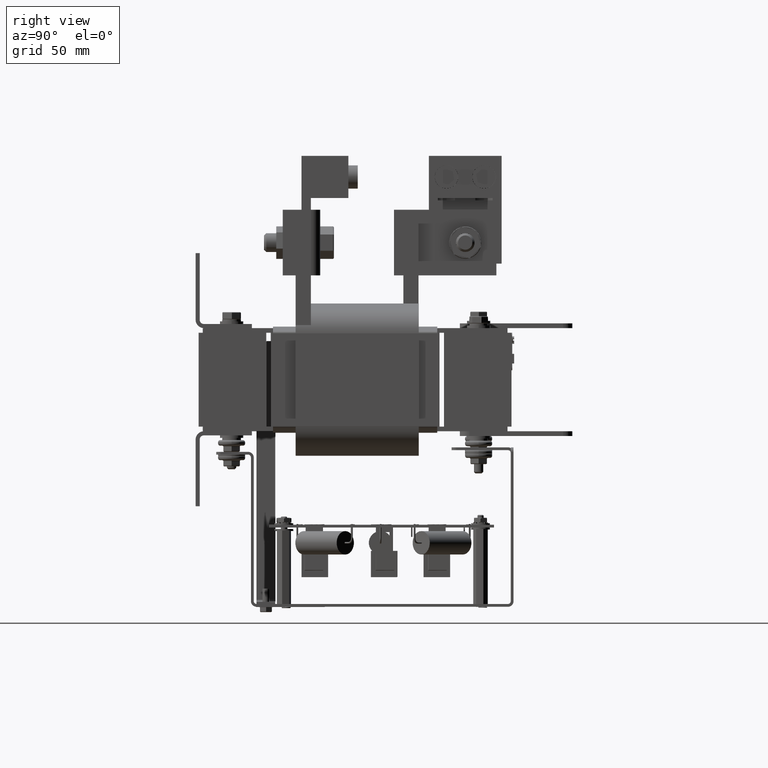
[diagram: clean part render]
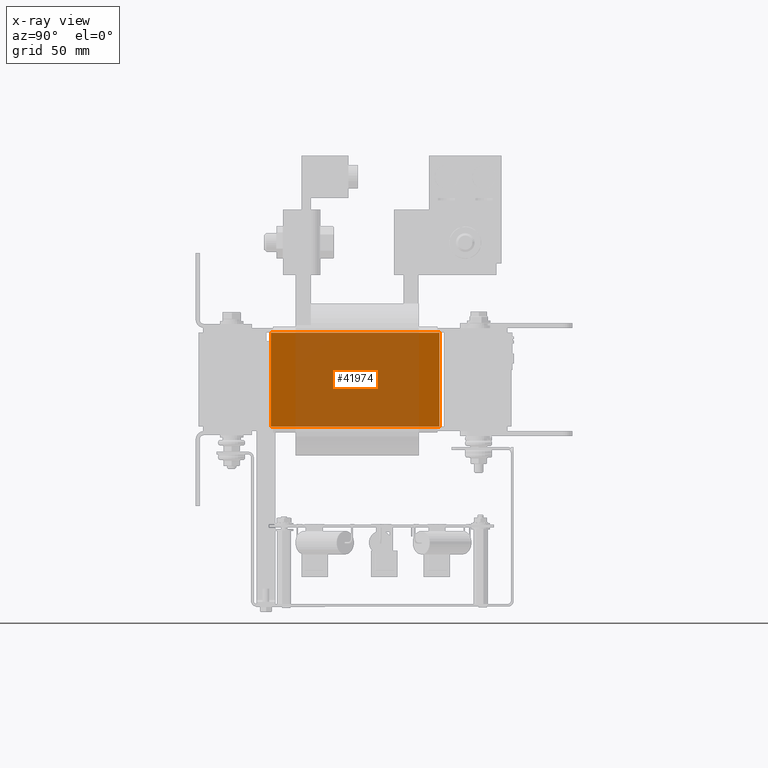
[diagram: x-ray — body ghosted, one internal face saturated and labeled with its STEP entity id]
A machine part, right view, then the same camera in x-ray: the body is ghosted and one INTERNAL B-rep face — a face not visible from any outside direction — is saturated and labeled: STEP entity #41974.
In plain terms, the highlighted planar face has unit normal (-1, 0, -0).
Its self-contained STEP definition (entity closure, byte-faithful):
#2367=PLANE('',#45105);
#3895=FACE_OUTER_BOUND('',#6269,.T.);
#6269=EDGE_LOOP('',(#31049,#31050,#31051,#31052));
#9283=LINE('',#66045,#13402);
#9284=LINE('',#66047,#13403);
#9285=LINE('',#66049,#13404);
#9286=LINE('',#66050,#13405);
#13402=VECTOR('',#50482,0.393700787401575);
#13403=VECTOR('',#50483,0.393700787401575);
#13404=VECTOR('',#50484,0.393700787401575);
#13405=VECTOR('',#50485,0.393700787401575);
#19075=VERTEX_POINT('',#66043);
#19076=VERTEX_POINT('',#66044);
#19077=VERTEX_POINT('',#66046);
#19078=VERTEX_POINT('',#66048);
#23569=EDGE_CURVE('',#19075,#19076,#9283,.T.);
#23570=EDGE_CURVE('',#19076,#19077,#9284,.T.);
#23571=EDGE_CURVE('',#19078,#19077,#9285,.T.);
#23572=EDGE_CURVE('',#19075,#19078,#9286,.T.);
#31049=ORIENTED_EDGE('',*,*,#23569,.T.);
#31050=ORIENTED_EDGE('',*,*,#23570,.T.);
#31051=ORIENTED_EDGE('',*,*,#23571,.F.);
#31052=ORIENTED_EDGE('',*,*,#23572,.F.);
#41974=ADVANCED_FACE('',(#3895),#2367,.T.);
#45105=AXIS2_PLACEMENT_3D('',#66042,#50480,#50481);
#50480=DIRECTION('center_axis',(0.,-1.,-2.03035277381935E-16));
#50481=DIRECTION('ref_axis',(0.,2.03035277381935E-16,-1.));
#50482=DIRECTION('',(0.,2.03035277381935E-16,-1.));
#50483=DIRECTION('',(1.,0.,0.));
#50484=DIRECTION('',(0.,2.03035277381935E-16,-1.));
#50485=DIRECTION('',(1.,0.,0.));
#66042=CARTESIAN_POINT('Origin',(0.,0.,1.6841822879332));
#66043=CARTESIAN_POINT('',(0.,0.,1.6841822879332));
#66044=CARTESIAN_POINT('',(0.,5.07588193454838E-16,-0.815817712066798));
#66045=CARTESIAN_POINT('',(0.,0.,1.6841822879332));
#66046=CARTESIAN_POINT('',(4.5,5.07588193454838E-16,-0.815817712066798));
#66047=CARTESIAN_POINT('',(0.,5.07588193454838E-16,-0.815817712066798));
#66048=CARTESIAN_POINT('',(4.5,0.,1.6841822879332));
#66049=CARTESIAN_POINT('',(4.5,0.,1.6841822879332));
#66050=CARTESIAN_POINT('',(0.,0.,1.6841822879332));